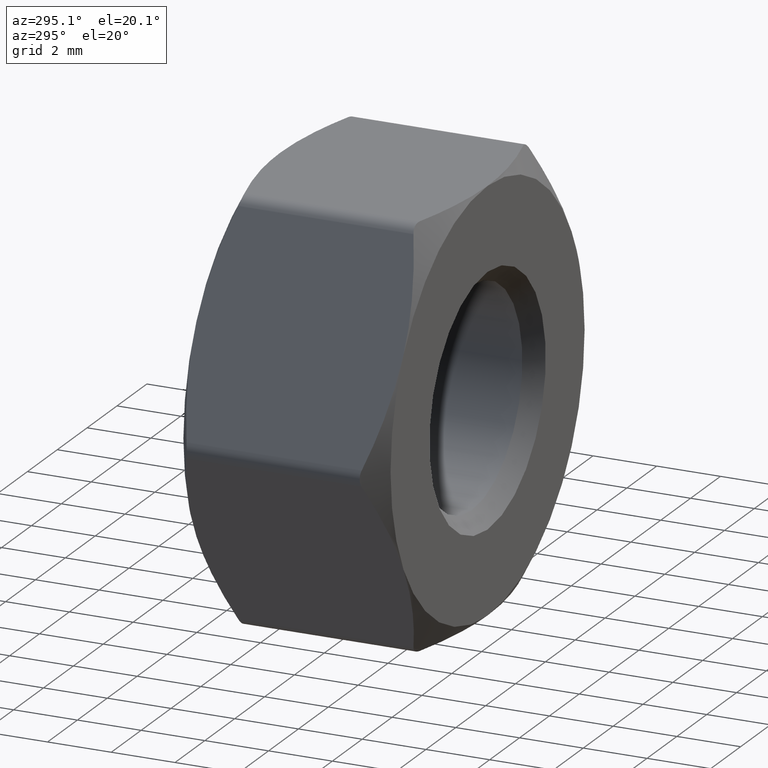
[diagram: clean part render]
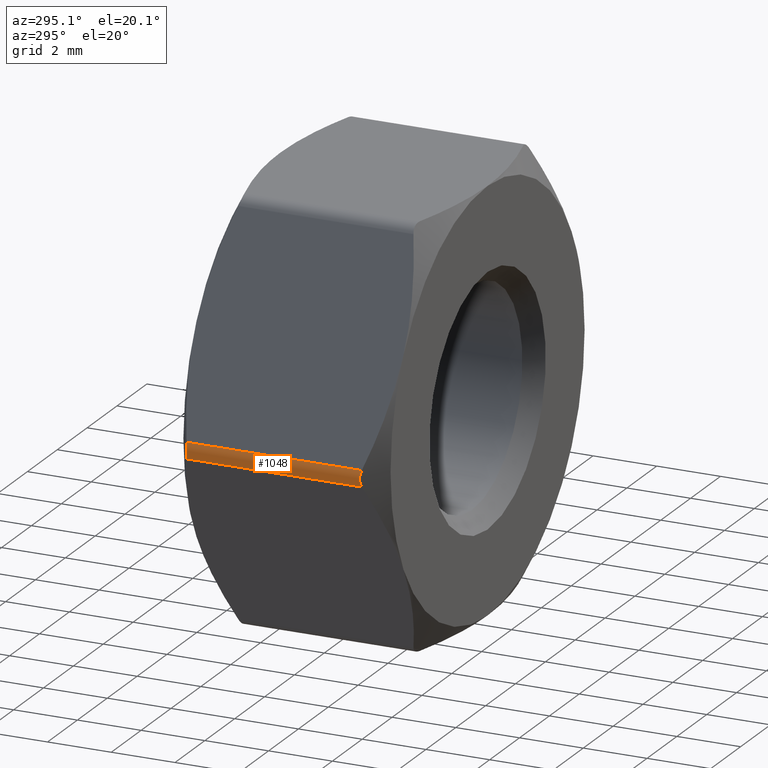
[diagram: same view with one face highlighted and labeled with its STEP entity id]
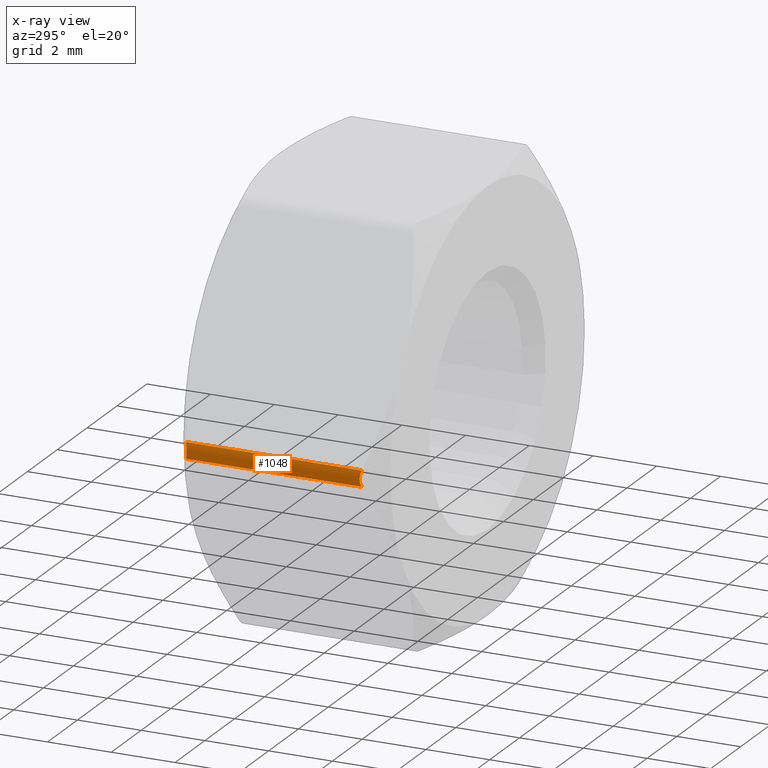
[diagram: x-ray of the same camera — body ghosted, the highlighted face saturated]
A machine part, auxiliary view. The second image highlights one B-rep face of the part: STEP entity #1048.
The next image is the same camera in x-ray: the body ghosted, the highlighted face saturated — about 0% of this face is hidden behind the body in this view.
In plain terms, the highlighted cylindrical surface (edge-blend (fillet) strip) has radius 0.5 mm, axis along (0, -1, 0).
Its self-contained STEP definition (entity closure, byte-faithful):
#11 = FACE_OUTER_BOUND ( 'NONE', #1478, .T. ) ;
#231 = CARTESIAN_POINT ( 'NONE',  ( -7.428280915287334800, 2.714059782672312500, 0.08759427660736848800 ) ) ;
#299 = VECTOR ( 'NONE', #462, 1000.000000000000000 ) ;
#393 = CARTESIAN_POINT ( 'NONE',  ( -7.361215932167727500, 3.250000000000000000, -0.2500000000000002200 ) ) ;
#396 = CARTESIAN_POINT ( 'NONE',  ( -7.361215932168763100, 2.750326475674317500, -0.2499999999982073200 ) ) ;
#415 = CARTESIAN_POINT ( 'NONE',  ( -7.361215932168763100, -2.750326475674317100, 0.2499999999982049400 ) ) ;
#428 = CARTESIAN_POINT ( 'NONE',  ( -7.361215932167726600, 2.750326475674880600, 0.2499999999999997200 ) ) ;
#434 = DIRECTION ( 'NONE',  ( 0.0000000000000000000, -1.000000000000000000, 0.0000000000000000000 ) ) ;
#440 = LINE ( 'NONE', #393, #1377 ) ;
#449 = B_SPLINE_CURVE_WITH_KNOTS ( 'NONE', 3,
 ( #1373, #998, #1386, #231, #1120, #620 ),
 .UNSPECIFIED., .F., .F.,
 ( 4, 2, 4 ),
 ( 2.009432713513691700E-015, 0.0002636355533736760600, 0.0005272711067453427600 ),
 .UNSPECIFIED. ) ;
#462 = DIRECTION ( 'NONE',  ( 0.0000000000000000000, -1.000000000000000000, 0.0000000000000000000 ) ) ;
#533 = EDGE_CURVE ( 'NONE', #1357, #1565, #440, .T. ) ;
#546 = CARTESIAN_POINT ( 'NONE',  ( -7.428125153970307300, -2.714143658310082900, 0.08847891585259043400 ) ) ;
#620 = CARTESIAN_POINT ( 'NONE',  ( -7.361215932167726600, 2.750326475674880600, 0.2499999999999997200 ) ) ;
#649 = CARTESIAN_POINT ( 'NONE',  ( -7.361215932168763100, -2.750326475674317100, 0.2499999999982049400 ) ) ;
#662 = CARTESIAN_POINT ( 'NONE',  ( -7.428280915287334800, -2.714059782672312500, -0.08759427660737027800 ) ) ;
#705 = EDGE_CURVE ( 'NONE', #1489, #1357, #707, .T. ) ;
#707 = B_SPLINE_CURVE_WITH_KNOTS ( 'NONE', 3,
 ( #415, #925, #546, #662, #1168, #1421 ),
 .UNSPECIFIED., .F., .F.,
 ( 4, 2, 4 ),
 ( 2.009333649176328600E-015, 0.0002636355533736756200, 0.0005272711067453419000 ),
 .UNSPECIFIED. ) ;
#756 = VERTEX_POINT ( 'NONE', #428 ) ;
#789 = ORIENTED_EDGE ( 'NONE', *, *, #1102, .F. ) ;
#810 = ORIENTED_EDGE ( 'NONE', *, *, #1391, .F. ) ;
#925 = CARTESIAN_POINT ( 'NONE',  ( -7.404188987665273600, -2.726988866944812800, 0.1755684845217742900 ) ) ;
#998 = CARTESIAN_POINT ( 'NONE',  ( -7.404188987665273600, 2.726988866944812800, -0.1755684845217767600 ) ) ;
#1048 = ADVANCED_FACE ( 'NONE', ( #11 ), #1217, .T. ) ;
#1102 = EDGE_CURVE ( 'NONE', #756, #1489, #1152, .T. ) ;
#1120 = CARTESIAN_POINT ( 'NONE',  ( -7.404203769545159900, 2.726980839270241500, 0.1755428815547819000 ) ) ;
#1141 = CARTESIAN_POINT ( 'NONE',  ( -7.361215932167727500, -2.750326475674880600, -0.2500000000000014400 ) ) ;
#1152 = LINE ( 'NONE', #1350, #299 ) ;
#1155 = ORIENTED_EDGE ( 'NONE', *, *, #533, .F. ) ;
#1168 = CARTESIAN_POINT ( 'NONE',  ( -7.404203769545159900, -2.726980839270241500, -0.1755428815547849500 ) ) ;
#1212 = AXIS2_PLACEMENT_3D ( 'NONE', #1580, #434, #1452 ) ;
#1217 = CYLINDRICAL_SURFACE ( 'NONE', #1212, 0.5000000000000000000 ) ;
#1350 = CARTESIAN_POINT ( 'NONE',  ( -7.361215932167727500, 3.250000000000000000, 0.2499999999999988100 ) ) ;
#1356 = ORIENTED_EDGE ( 'NONE', *, *, #705, .F. ) ;
#1357 = VERTEX_POINT ( 'NONE', #1141 ) ;
#1373 = CARTESIAN_POINT ( 'NONE',  ( -7.361215932168763100, 2.750326475674317500, -0.2499999999982073200 ) ) ;
#1377 = VECTOR ( 'NONE', #1517, 1000.000000000000000 ) ;
#1386 = CARTESIAN_POINT ( 'NONE',  ( -7.428125153970307300, 2.714143658310082400, -0.08847891585259279300 ) ) ;
#1391 = EDGE_CURVE ( 'NONE', #1565, #756, #449, .T. ) ;
#1421 = CARTESIAN_POINT ( 'NONE',  ( -7.361215932167727500, -2.750326475674880600, -0.2500000000000014400 ) ) ;
#1452 = DIRECTION ( 'NONE',  ( 0.0000000000000000000, 0.0000000000000000000, -1.000000000000000000 ) ) ;
#1478 = EDGE_LOOP ( 'NONE', ( #810, #1155, #1356, #789 ) ) ;
#1489 = VERTEX_POINT ( 'NONE', #649 ) ;
#1517 = DIRECTION ( 'NONE',  ( -0.0000000000000000000, 1.000000000000000000, -0.0000000000000000000 ) ) ;
#1565 = VERTEX_POINT ( 'NONE', #396 ) ;
#1580 = CARTESIAN_POINT ( 'NONE',  ( -6.928203230275507900, 3.250000000000000000, -1.517883041479706200E-015 ) ) ;